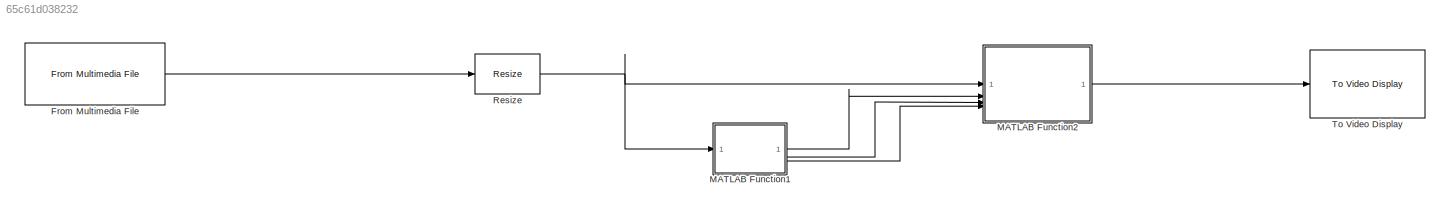
MODEL slx_65c61d038232
KIND model
CONFIG AbsTol = auto
CONFIG EnableMultiTasking = off
CONFIG FixedStep = auto
CONFIG MaxStep = auto
CONFIG MinStep = auto
CONFIG RelTol = 1e-3
CONFIG SampleTimeConstraint = Unconstrained
CONFIG SolverName = VariableStepAuto
CONFIG StartTime = 0.0
CONFIG StopTime = 10.0
BLOCK [Reference] From Multimedia File  REF=dspvision/From Multimedia File
  LibrarySourceBlock = visionsources/From Multimedia File
  SourceBlock = dspvision/From Multimedia File
  SourceType = From Multimedia File
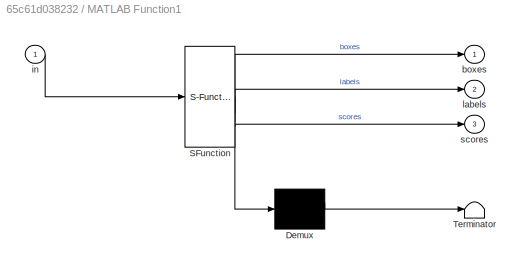
BLOCK [SubSystem] MATLAB Function1
  ErrorFcn = Stateflow.Translate.translate
  LibrarySourceBlock = simulink/User-Defined\nFunctions/MATLAB Function
  PermitHierarchicalResolution = ExplicitOnly
  SFBlockType = MATLAB Function
  TreatAsAtomicUnit = on
BLOCK [Demux] MATLAB Function1/ Demux 
  Outputs = 1
BLOCK [S-Function] MATLAB Function1/ SFunction 
  EnableBusSupport = on
  FunctionName = sf_sfun
  PortCounts = [1 4]
  SFcnIsStateOwnerBlock = off
  SFunctionDeploymentMode = off
  Tag = Stateflow S-Function 1
BLOCK [Terminator] MATLAB Function1/ Terminator 
BLOCK [Outport] MATLAB Function1/boxes
BLOCK [Inport] MATLAB Function1/in
BLOCK [Outport] MATLAB Function1/labels
  Port = 2
BLOCK [Outport] MATLAB Function1/scores
  Port = 3
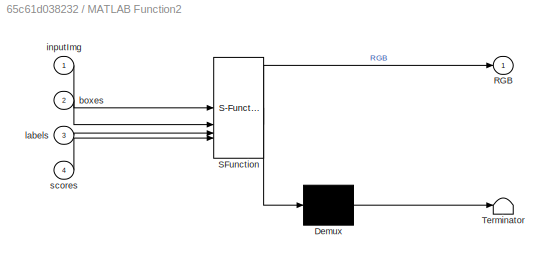
BLOCK [SubSystem] MATLAB Function2
  ErrorFcn = Stateflow.Translate.translate
  LibrarySourceBlock = simulink/User-Defined\nFunctions/MATLAB Function
  PermitHierarchicalResolution = ExplicitOnly
  SFBlockType = MATLAB Function
  TreatAsAtomicUnit = on
BLOCK [Demux] MATLAB Function2/ Demux 
  Outputs = 1
BLOCK [S-Function] MATLAB Function2/ SFunction 
  EnableBusSupport = on
  FunctionName = sf_sfun
  PortCounts = [4 2]
  SFcnIsStateOwnerBlock = off
  SFunctionDeploymentMode = off
  Tag = Stateflow S-Function 3
BLOCK [Terminator] MATLAB Function2/ Terminator 
BLOCK [Outport] MATLAB Function2/RGB
BLOCK [Inport] MATLAB Function2/boxes
  Port = 2
BLOCK [Inport] MATLAB Function2/inputImg
BLOCK [Inport] MATLAB Function2/labels
  Port = 3
BLOCK [Inport] MATLAB Function2/scores
  Port = 4
BLOCK [Reference] Resize  REF=visiongeotforms/Resize
  SourceBlock = visiongeotforms/Resize
  SourceType = Resize
BLOCK [Reference] To Video Display  REF=visionsinks/To Video Display
  SourceBlock = visionsinks/To Video Display
  SourceType = To Video Display
LINE From Multimedia File:1 -> Resize:1
LINE MATLAB Function1:1 -> MATLAB Function2:2
LINE MATLAB Function1:2 -> MATLAB Function2:3
LINE MATLAB Function1:3 -> MATLAB Function2:4
LINE MATLAB Function2:1 -> To Video Display:1
NET Resize:1 -> MATLAB Function1:1, MATLAB Function2:1
note: NET lines group one-source signal fan-out (src -> all destinations, sorted); 1:1 wires keep LINE
CHART MATLAB Function1 states=1 transitions=1
  STATE_LABEL 'eML_blk_kernel()'
  STATE_LABEL "SCRIPT:\nfunction [boxes,labels,scores] = tflite_predict(in)\npersistent net;\nif isempty(net)\n    net = loadTFLiteModel('lite-model_qat_mobilenet_v2_retinanet_256_1.tflite');\nend\n net.NumThreads=4;\n[boxes, labels, scores, ~] = predict(net, in, 'EnableINT8InferenceOnWindows', true);\n\n\n\n\n\n\n\n\n"
CHART MATLAB Function2 states=1 transitions=1
  STATE_LABEL 'eML_blk_kernel()'
  STATE_LABEL "SCRIPT:\nfunction RGB = postProcess(inputImg, boxes, labels, scores)\n    labelsFile = cell(80, 1); % Remove unnecessary cell initialization\n    fid = fopen('label.txt');\n    lne = myfgetl(fid);\n    for i = 1:80\n        labelsFile{i} = lne;\n        lne = myfgetl(fid);\n    end\n    fclose(fid);\n    labelsFile = readtxtFile(labelsFile);\n\n    ymin = boxes(:, 1) * size(inputImg, 1);\n    xmin = boxes(:, 2...<+1599ch>"
CHART  states=0 transitions=0
CHART  states=0 transitions=0
